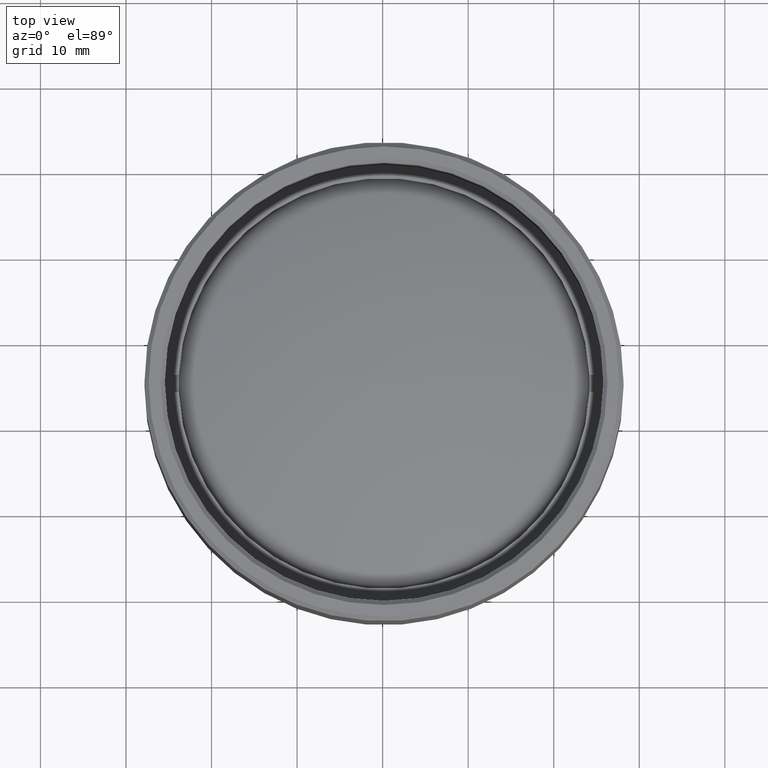
[diagram: clean part render]
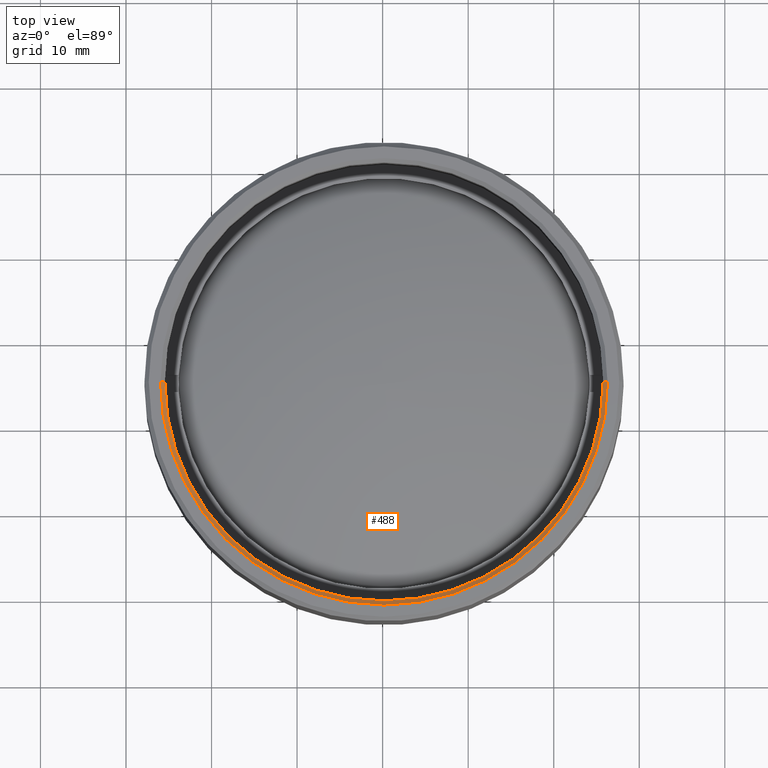
[diagram: same view with one face highlighted and labeled with its STEP entity id]
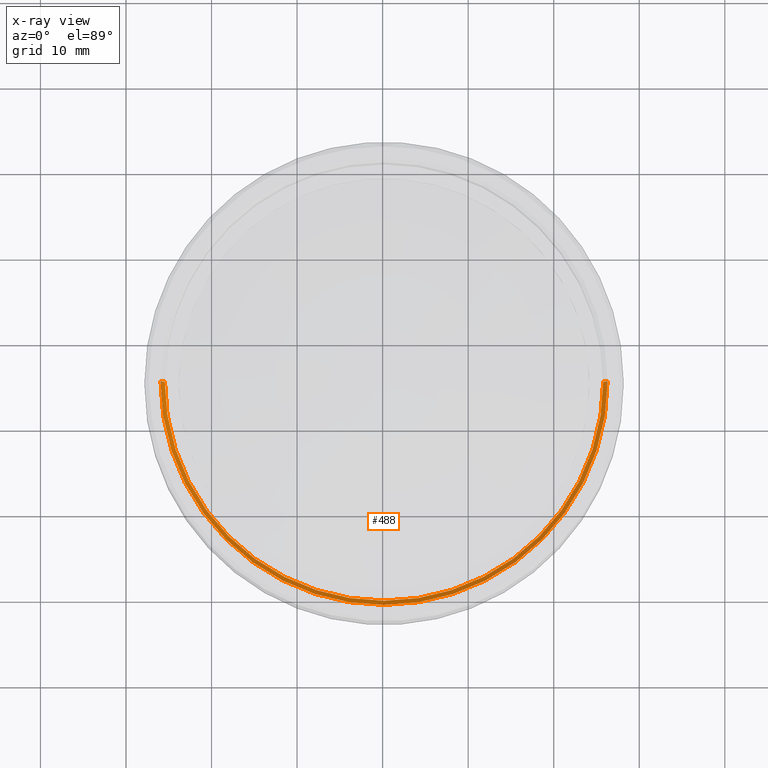
[diagram: x-ray of the same camera — body ghosted, the highlighted face saturated]
A machine part, top view. The second image highlights one B-rep face of the part: STEP entity #488.
The next image is the same camera in x-ray: the body ghosted, the highlighted face saturated — about 0% of this face is hidden behind the body in this view.
In plain terms, the highlighted conical surface has half-angle 45 deg.
Its self-contained STEP definition (entity closure, byte-faithful):
#8 = EDGE_CURVE ( 'NONE', #298, #1018, #1581, .T. ) ;
#91 = CONICAL_SURFACE ( 'NONE', #1719, 25.62500000000000000, 0.7853981633974380649 ) ;
#109 = DIRECTION ( 'NONE',  ( 0.000000000000000000, 0.000000000000000000, 1.000000000000000000 ) ) ;
#159 = VERTEX_POINT ( 'NONE', #1241 ) ;
#172 = LINE ( 'NONE', #1125, #1704 ) ;
#213 = DIRECTION ( 'NONE',  ( 0.000000000000000000, 0.000000000000000000, 1.000000000000000000 ) ) ;
#272 = DIRECTION ( 'NONE',  ( 1.000000000000000000, 0.000000000000000000, 0.000000000000000000 ) ) ;
#298 = VERTEX_POINT ( 'NONE', #1172 ) ;
#351 = DIRECTION ( 'NONE',  ( -0.7071067811865402453, 8.659560562354844111E-17, 0.7071067811865549002 ) ) ;
#393 = FACE_OUTER_BOUND ( 'NONE', #851, .T. ) ;
#488 = ADVANCED_FACE ( 'NONE', ( #393 ), #91, .F. ) ;
#522 = AXIS2_PLACEMENT_3D ( 'NONE', #1516, #1384, #693 ) ;
#530 = AXIS2_PLACEMENT_3D ( 'NONE', #1070, #109, #272 ) ;
#573 = ORIENTED_EDGE ( 'NONE', *, *, #8, .F. ) ;
#693 = DIRECTION ( 'NONE',  ( 1.000000000000000000, 0.000000000000000000, 0.000000000000000000 ) ) ;
#851 = EDGE_LOOP ( 'NONE', ( #945, #1651, #573, #1407 ) ) ;
#894 = EDGE_CURVE ( 'NONE', #1657, #159, #1308, .T. ) ;
#945 = ORIENTED_EDGE ( 'NONE', *, *, #894, .F. ) ;
#1018 = VERTEX_POINT ( 'NONE', #1134 ) ;
#1053 = DIRECTION ( 'NONE',  ( 0.7071067811865402453, 0.000000000000000000, 0.7071067811865549002 ) ) ;
#1070 = CARTESIAN_POINT ( 'NONE',  ( 0.000000000000000000, 0.000000000000000000, 32.00000000000000711 ) ) ;
#1125 = CARTESIAN_POINT ( 'NONE',  ( -25.62500000000000000, 3.138157422815092510E-15, 32.00000000000000711 ) ) ;
#1134 = CARTESIAN_POINT ( 'NONE',  ( -26.12499999999998224, 3.199389762772458112E-15, 32.50000000000000000 ) ) ;
#1172 = CARTESIAN_POINT ( 'NONE',  ( 26.12499999999998224, 0.000000000000000000, 32.50000000000000000 ) ) ;
#1184 = EDGE_CURVE ( 'NONE', #159, #298, #1589, .T. ) ;
#1241 = CARTESIAN_POINT ( 'NONE',  ( 25.62500000000000000, 0.000000000000000000, 32.00000000000000711 ) ) ;
#1308 = CIRCLE ( 'NONE', #530, 25.62500000000000000 ) ;
#1384 = DIRECTION ( 'NONE',  ( -0.000000000000000000, -0.000000000000000000, -1.000000000000000000 ) ) ;
#1407 = ORIENTED_EDGE ( 'NONE', *, *, #1184, .F. ) ;
#1419 = CARTESIAN_POINT ( 'NONE',  ( -25.62500000000000000, 3.138157422815092510E-15, 32.00000000000000711 ) ) ;
#1455 = CARTESIAN_POINT ( 'NONE',  ( 0.000000000000000000, 0.000000000000000000, 32.00000000000000711 ) ) ;
#1474 = DIRECTION ( 'NONE',  ( 1.000000000000000000, 0.000000000000000000, 0.000000000000000000 ) ) ;
#1516 = CARTESIAN_POINT ( 'NONE',  ( 0.000000000000000000, 0.000000000000000000, 32.50000000000000000 ) ) ;
#1538 = EDGE_CURVE ( 'NONE', #1657, #1018, #172, .T. ) ;
#1581 = CIRCLE ( 'NONE', #522, 26.12499999999998224 ) ;
#1589 = LINE ( 'NONE', #1705, #1650 ) ;
#1650 = VECTOR ( 'NONE', #1053, 1000.000000000000114 ) ;
#1651 = ORIENTED_EDGE ( 'NONE', *, *, #1538, .T. ) ;
#1657 = VERTEX_POINT ( 'NONE', #1419 ) ;
#1704 = VECTOR ( 'NONE', #351, 1000.000000000000114 ) ;
#1705 = CARTESIAN_POINT ( 'NONE',  ( 25.62500000000000000, 0.000000000000000000, 32.00000000000000711 ) ) ;
#1719 = AXIS2_PLACEMENT_3D ( 'NONE', #1455, #213, #1474 ) ;